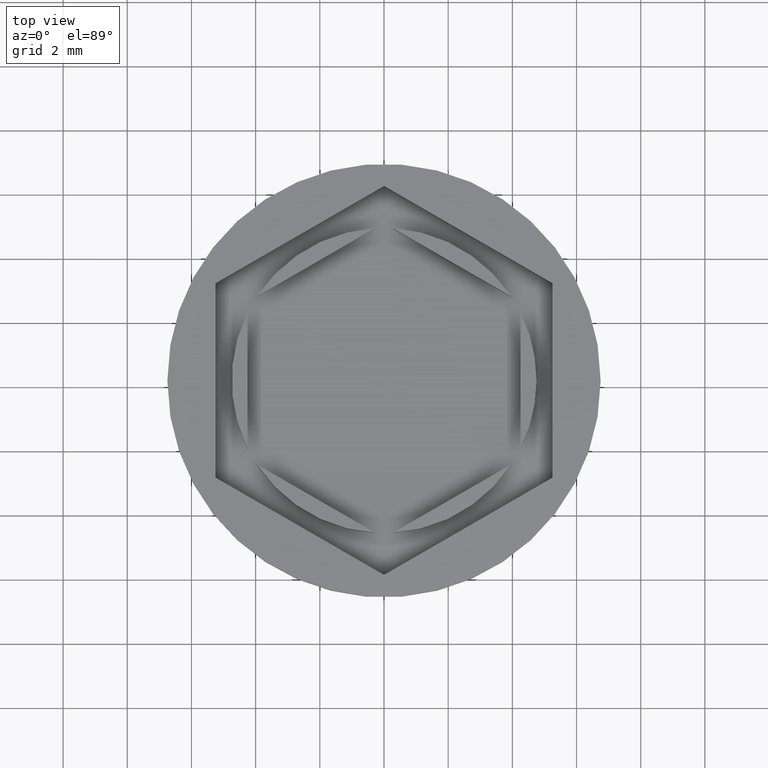
[diagram: clean part render]
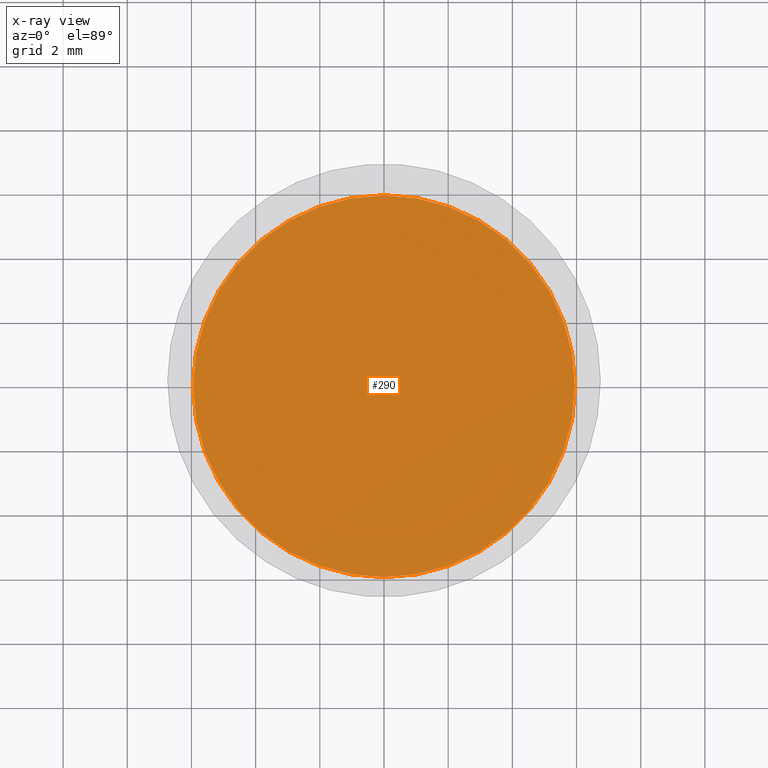
[diagram: x-ray — body ghosted, one internal face saturated and labeled with its STEP entity id]
A machine part, top view, then the same camera in x-ray: the body is ghosted and one INTERNAL B-rep face — a face not visible from any outside direction — is saturated and labeled: STEP entity #290.
In plain terms, the highlighted planar face has unit normal (0, 0, -1).
Its self-contained STEP definition (entity closure, byte-faithful):
#117 = EDGE_CURVE ( 'NONE', #1705, #1719, #1630, .T. ) ;
#267 = ORIENTED_EDGE ( 'NONE', *, *, #481, .T. ) ;
#290 = ADVANCED_FACE ( 'NONE', ( #1927 ), #388, .F. ) ;
#388 = PLANE ( 'NONE',  #922 ) ;
#472 = CARTESIAN_POINT ( 'NONE',  ( 0.000000000000000000, 0.000000000000000000, -10.50000000000000000 ) ) ;
#481 = EDGE_CURVE ( 'NONE', #1719, #1705, #548, .T. ) ;
#548 = CIRCLE ( 'NONE', #709, 5.950000000000000178 ) ;
#554 = CARTESIAN_POINT ( 'NONE',  ( 0.000000000000000000, 0.000000000000000000, -10.50000000000000000 ) ) ;
#709 = AXIS2_PLACEMENT_3D ( 'NONE', #472, #1070, #1733 ) ;
#771 = CARTESIAN_POINT ( 'NONE',  ( 0.000000000000000000, 0.000000000000000000, -10.50000000000000000 ) ) ;
#922 = AXIS2_PLACEMENT_3D ( 'NONE', #554, #1757, #1770 ) ;
#930 = CARTESIAN_POINT ( 'NONE',  ( 5.950000000000000178, 7.470345474798855279E-16, -10.50000000000000000 ) ) ;
#1070 = DIRECTION ( 'NONE',  ( -0.000000000000000000, -0.000000000000000000, 1.000000000000000000 ) ) ;
#1175 = CARTESIAN_POINT ( 'NONE',  ( -5.950000000000000178, 0.000000000000000000, -10.50000000000000000 ) ) ;
#1377 = DIRECTION ( 'NONE',  ( -0.000000000000000000, -0.000000000000000000, 1.000000000000000000 ) ) ;
#1385 = EDGE_LOOP ( 'NONE', ( #267, #1841 ) ) ;
#1575 = DIRECTION ( 'NONE',  ( -1.000000000000000000, 0.000000000000000000, 0.000000000000000000 ) ) ;
#1630 = CIRCLE ( 'NONE', #1665, 5.950000000000000178 ) ;
#1665 = AXIS2_PLACEMENT_3D ( 'NONE', #771, #1377, #1575 ) ;
#1705 = VERTEX_POINT ( 'NONE', #930 ) ;
#1719 = VERTEX_POINT ( 'NONE', #1175 ) ;
#1733 = DIRECTION ( 'NONE',  ( -1.000000000000000000, 0.000000000000000000, 0.000000000000000000 ) ) ;
#1757 = DIRECTION ( 'NONE',  ( 0.000000000000000000, 0.000000000000000000, -1.000000000000000000 ) ) ;
#1770 = DIRECTION ( 'NONE',  ( -1.000000000000000000, 0.000000000000000000, -0.000000000000000000 ) ) ;
#1841 = ORIENTED_EDGE ( 'NONE', *, *, #117, .T. ) ;
#1927 = FACE_OUTER_BOUND ( 'NONE', #1385, .T. ) ;